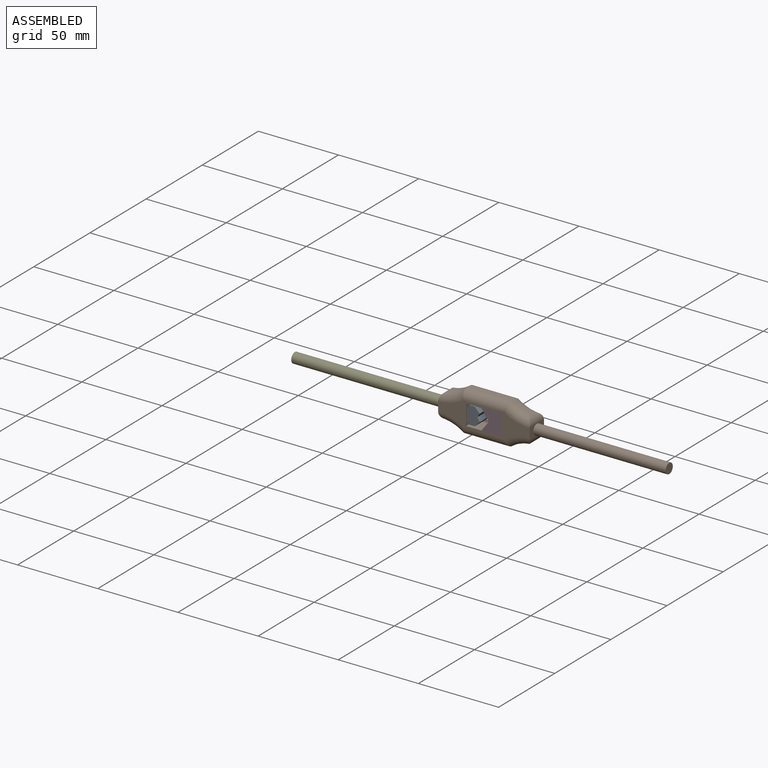
[diagram: assembled view]
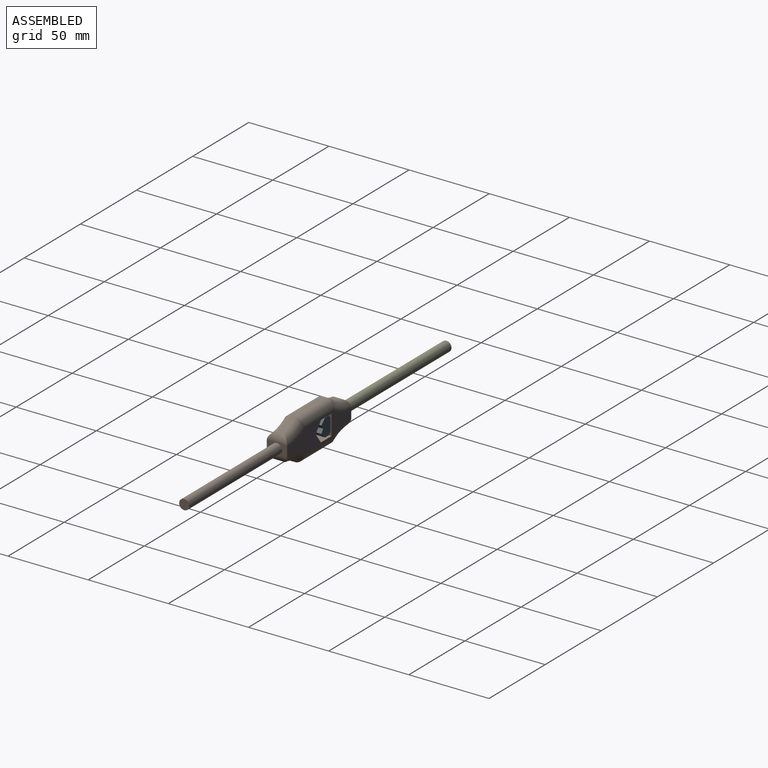
[diagram: assembled view, second angle]
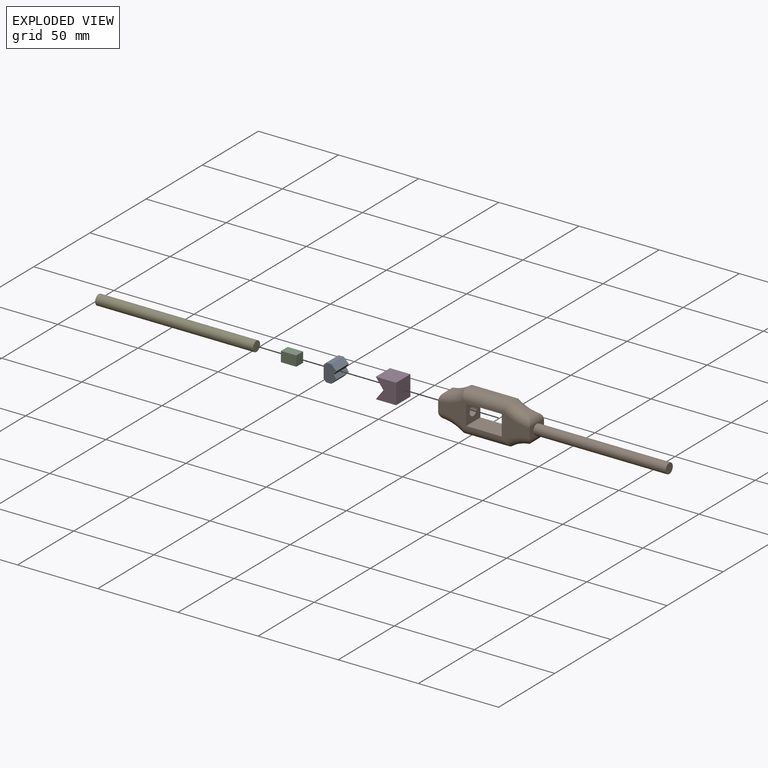
[diagram: exploded view]
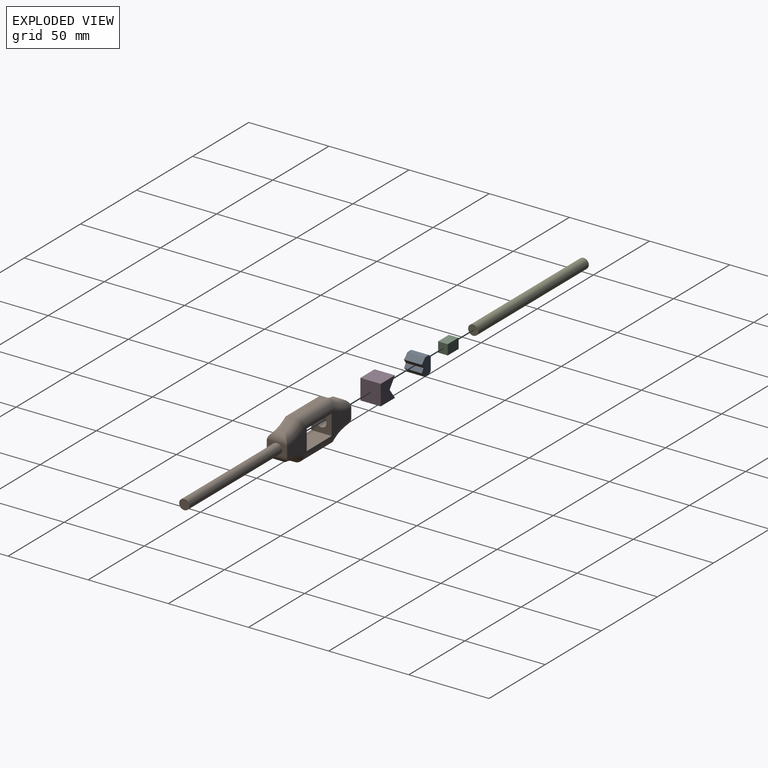
[diagram: exploded view, second angle]
ASSEMBLY  parts=5 mates=4
PART A: 11 faces, bbox 7.9x11.1x11.1 mm
  f0: plane 11.11x7.94mm, normal (-1,0,0), area 88.2mm2, adj f1,f8,f9,f10
  f1: plane 11.11x1.59mm, normal (-0.71,0,-0.71), area 24.9mm2, adj f0,f2,f9,f10
  f2: plane 11.11x3.18mm, normal (0,0,-1), area 35.3mm2, adj f1,f3,f9,f10
  f3: plane 11.11x3.18mm, normal (0.71,0,-0.71), area 49.9mm2, adj f2,f4,f9,f10
  f4: plane 11.11x2.38mm, normal (0.83,0,0.55), area 31.8mm2, adj f3,f5,f9,f10
  f5: plane 11.11x2.38mm, normal (0.83,0,-0.55), area 31.8mm2, adj f4,f6,f9,f10
  f6: plane 11.11x3.18mm, normal (0.71,0,0.71), area 49.9mm2, adj f5,f7,f9,f10
  f7: plane 11.11x3.18mm, normal (0,0,1), area 35.3mm2, adj f6,f8,f9,f10
  f8: plane 11.11x1.59mm, normal (-0.71,0,0.71), area 24.9mm2, adj f0,f7,f9,f10
  f9: plane 11.11x7.94mm, normal (0,-1,0), area 71.8mm2, adj f0,f1,f2,f3,f4,f5,f6,f7
  f10: plane 11.11x7.94mm, normal (0,1,0), area 71.8mm2, adj f0,f1,f2,f3,f4,f5,f6,f7
PART B: 33 faces, bbox 139.7x12.7x25.4 mm
  f0: plane 22.23x12.7mm, normal (0,0,1), area 282.3mm2, adj f1,f11,f12,f13
  f1: plane 12.7x12.7mm, normal (1,0,0), area 161.3mm2, adj f0,f2,f12,f13
  f2: plane 22.23x12.7mm, normal (0,0,-1), area 282.3mm2, adj f1,f11,f12,f13
  f3: cylinder r=23.81mm len=10.1mm, axis (0,1,0), area 28.2mm2, adj f10,f21,f22,f23
  f4: plane 12.7x6.62mm, normal (1,0,0), area 52.3mm2, adj f12,f13,f21,f22,f23,f29,f30,f31
  f5: cylinder r=23.81mm len=10.1mm, axis (0,1,0), area 28.2mm2, adj f6,f29,f30,f31
  f6: plane 28.58x2.54mm, normal (0,0,1), area 72.6mm2, adj f5,f7,f27,f28
  f7: cylinder r=23.81mm len=10.1mm, axis (0,1,0), area 28.2mm2, adj f6,f24,f25,f26
  f8: plane 12.7x6.62mm, normal (-1,0,0), area 52.3mm2, adj f12,f13,f14,f16,f17,f18,f24,f25
  f9: cylinder r=23.81mm len=10.1mm, axis (0,1,0), area 28.2mm2, adj f10,f16,f17,f18
  f10: plane 28.58x2.54mm, normal (0,0,-1), area 72.6mm2, adj f3,f9,f19,f20
  f11: plane 12.7x12.7mm, normal (-1,0,0), area 129.6mm2, adj f0,f2,f12,f13,f32
  f12: plane 57.15x15.24mm, normal (0,-1,0), area 383.3mm2, adj f0,f1,f2,f4,f8,f11,f17,f19
  f13: plane 57.15x15.24mm, normal (0,1,0), area 383.3mm2, adj f0,f1,f2,f4,f8,f11,f18,f20
  f14: cylinder r=3.17mm len=82.55mm, axis (1,0,0), area 1646.8mm2, adj f8,f15
  f15: plane 6.35x6.35mm, normal (-1,0,0), area 31.7mm2, adj f14
  f16: cylinder r=5.08mm len=12.66mm, axis (0,1,0), area 62.8mm2, adj f8,f9,f17,f18
  f17: torus R=28.89mm, axis (0,-1,0), area 115.2mm2, adj f8,f9,f12,f16,f19
  f18: torus R=28.89mm, axis (0,-1,0), area 115.2mm2, adj f8,f9,f13,f16,f20
  f19: cylinder r=5.08mm len=28.58mm, axis (-1,0,0), area 218.5mm2, adj f10,f12,f17,f21
  f20: cylinder r=5.08mm len=28.58mm, axis (1,0,0), area 218.5mm2, adj f10,f13,f18,f22
  f21: torus R=28.89mm, axis (0,-1,0), area 115.2mm2, adj f3,f4,f12,f19,f23
  f22: torus R=28.89mm, axis (0,-1,0), area 115.2mm2, adj f3,f4,f13,f20,f23
  f23: cylinder r=5.08mm len=12.66mm, axis (0,1,0), area 62.8mm2, adj f3,f4,f21,f22
  f24: cylinder r=5.08mm len=12.66mm, axis (0,1,0), area 62.8mm2, adj f7,f8,f25,f26
  f25: torus R=28.89mm, axis (0,-1,0), area 115.2mm2, adj f7,f8,f12,f24,f27
  f26: torus R=28.89mm, axis (0,-1,0), area 115.2mm2, adj f7,f8,f13,f24,f28
  f27: cylinder r=5.08mm len=28.58mm, axis (1,0,0), area 218.5mm2, adj f6,f12,f25,f29
  f28: cylinder r=5.08mm len=28.58mm, axis (-1,0,0), area 218.5mm2, adj f6,f13,f26,f30
  f29: torus R=28.89mm, axis (0,-1,0), area 115.2mm2, adj f4,f5,f12,f27,f31
  f30: torus R=28.89mm, axis (0,-1,0), area 115.2mm2, adj f4,f5,f13,f28,f31
  f31: cylinder r=5.08mm len=12.66mm, axis (0,1,0), area 62.8mm2, adj f4,f5,f29,f30
  f32: cylinder r=3.17mm len=17.46mm, axis (1,0,0), area 348.4mm2, adj f4,f11
PART C: 6 faces, bbox 9.6x6x6.4 mm
  f0: plane 6.35x6.05mm, normal (1,0,0), area 38.4mm2, adj f1,f3,f4,f5
  f1: plane 9.65x6.05mm, normal (0,0,1), area 58.3mm2, adj f0,f2,f4,f5
  f2: plane 6.35x6.05mm, normal (-1,0,0), area 38.4mm2, adj f1,f3,f4,f5
  f3: plane 9.65x6.05mm, normal (0,0,-1), area 58.3mm2, adj f0,f2,f4,f5
  f4: plane 9.65x6.35mm, normal (0,-1,0), area 61.3mm2, adj f0,f1,f2,f3
  f5: plane 9.65x6.35mm, normal (0,1,0), area 61.3mm2, adj f0,f1,f2,f3
PART D: 7 faces, bbox 12.7x12.7x12.7 mm
  f0: plane 12.7x12.7mm, normal (-1,0,0), area 161.3mm2, adj f1,f4,f5,f6
  f1: plane 12.7x6.35mm, normal (0.6,0,-0.8), area 100.8mm2, adj f0,f2,f5,f6
  f2: plane 12.7x6.35mm, normal (-0.6,0,-0.8), area 100.8mm2, adj f1,f3,f5,f6
  f3: plane 12.7x12.7mm, normal (1,0,0), area 161.3mm2, adj f2,f4,f5,f6
  f4: plane 12.7x12.7mm, normal (0,0,1), area 161.3mm2, adj f0,f3,f5,f6
  f5: plane 12.7x12.7mm, normal (0,-1,0), area 131mm2, adj f0,f1,f2,f3,f4
  f6: plane 12.7x12.7mm, normal (0,1,0), area 131mm2, adj f0,f1,f2,f3,f4
PART E: 3 faces, bbox 98.4x6.4x6.4 mm
  f0: cylinder r=3.17mm len=98.43mm, axis (-1,0,0), area 1963.5mm2, adj f1,f2
  f1: plane 6.35x6.35mm, normal (1,0,0), area 31.7mm2, adj f0
  f2: plane 6.35x6.35mm, normal (-1,0,0), area 31.7mm2, adj f0
PLACE A t=(23.87,-36.48,41.89)mm
PLACE B rot(axis=(0,0,1),180deg) t=(-124.21,-48.36,-2.71)mm
PLACE C t=(23.87,-36.96,41.89)mm
PLACE D rot(axis=(0,1,0),90deg) t=(-55.93,-35.66,-39.06)mm
PLACE E t=(20.63,-37.28,41.89)mm
MATE fastened C.f0 <-> B.f32  axis (1,0,0) through (-96.42,-42.04,29.65)mm
MATE fastened A.f0 <-> B.f32  axis (-1,0,0) through (-96.42,-42.04,29.65)mm
MATE fastened D.f4 <-> B.f14  axis (1,0,0) through (-74.2,-42.01,29.64)mm
MATE slider E.f0 <-> B.f32  axis (1,0,0) through (-109.31,-42.04,29.65)mm
